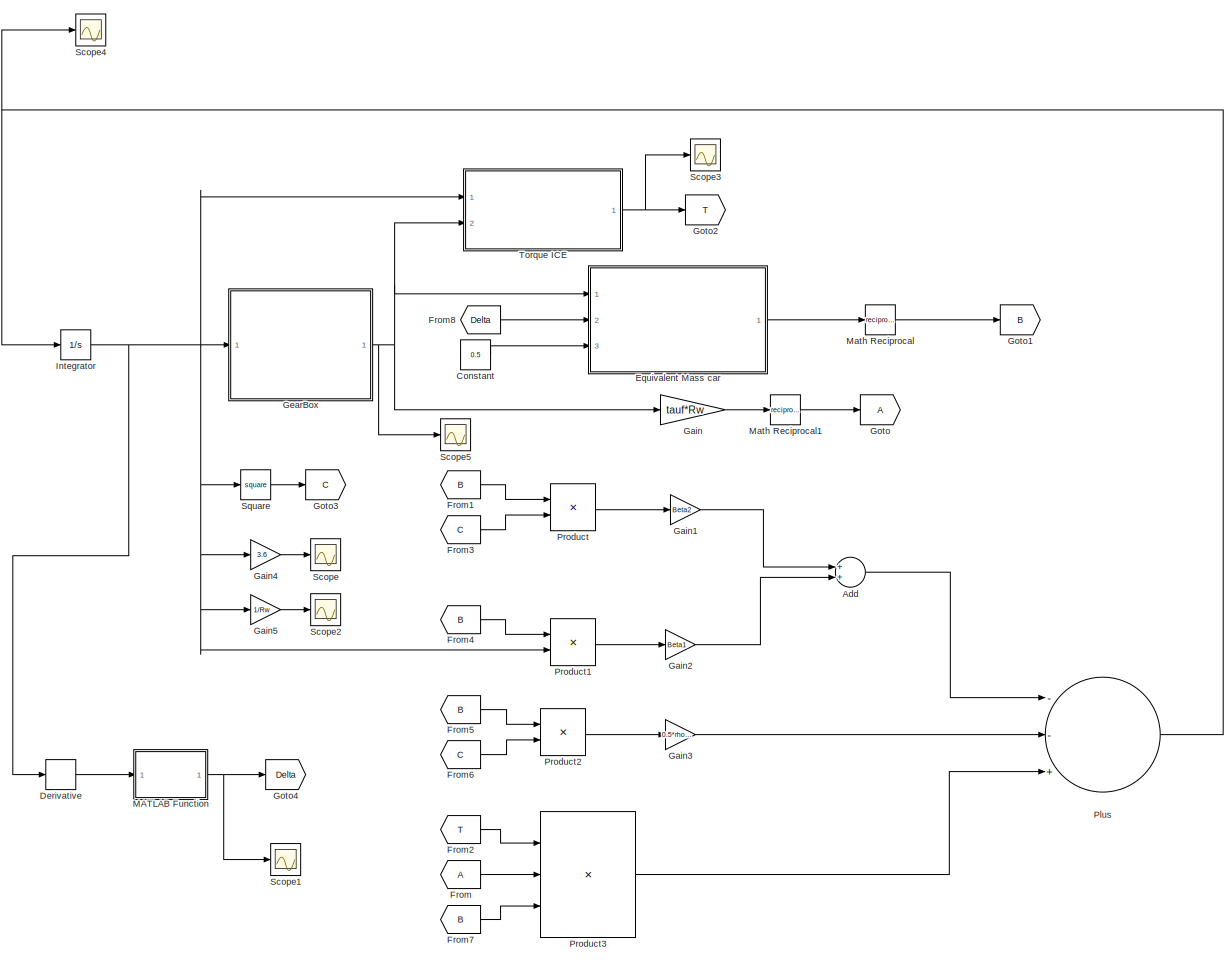
[diagram: root canvas - part 1/1, most of the canvas]
MODEL slx_4124f3d9a6a4
KIND model
CONFIG AbsTol = auto
CONFIG EnableMultiTasking = off
CONFIG FixedStep = auto
CONFIG MaxStep = auto
CONFIG MinStep = auto
CONFIG RelTol = 1e-3
CONFIG SampleTimeConstraint = Unconstrained
CONFIG Solver = VariableStepAuto
CONFIG SolverName = VariableStepAuto
CONFIG StartTime = 0.0
CONFIG StopTime = 10.0
BLOCK [Sum] Add
  InputSameDT = off
  OutDataTypeStr = Inherit: Inherit via internal rule
  Ports = [2, 1]
  SaturateOnIntegerOverflow = off
BLOCK [Constant] Constant
  Value = 0.5
BLOCK [Derivative] Derivative
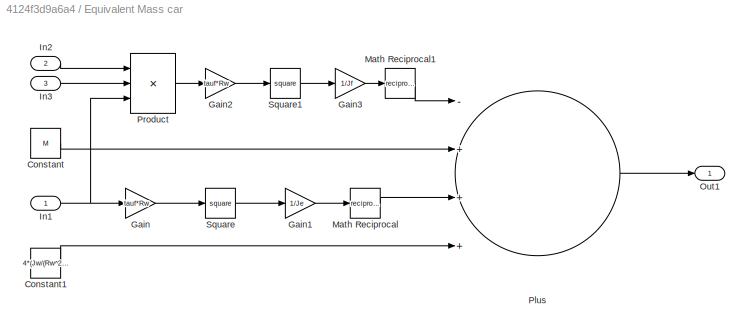
BLOCK [SubSystem] Equivalent Mass car
  Ports = [3, 1]
  RequestExecContextInheritance = off
BLOCK [Constant] Equivalent Mass car/Constant
  Value = M
BLOCK [Constant] Equivalent Mass car/Constant1
  Value = 4*(Jw/(Rw^2))
BLOCK [Gain] Equivalent Mass car/Gain
  Gain = tauf*Rw
  OutDataTypeStr = Inherit: Inherit via internal rule
  ParamDataTypeStr = Inherit: Inherit via internal rule
  SaturateOnIntegerOverflow = off
BLOCK [Gain] Equivalent Mass car/Gain1
  Gain = 1/Je
  OutDataTypeStr = Inherit: Inherit via internal rule
  ParamDataTypeStr = Inherit: Inherit via internal rule
  SaturateOnIntegerOverflow = off
BLOCK [Gain] Equivalent Mass car/Gain2
  Gain = tauf*Rw
  OutDataTypeStr = Inherit: Inherit via internal rule
  ParamDataTypeStr = Inherit: Inherit via internal rule
  SaturateOnIntegerOverflow = off
BLOCK [Gain] Equivalent Mass car/Gain3
  Gain = 1/Jf
  OutDataTypeStr = Inherit: Inherit via internal rule
  ParamDataTypeStr = Inherit: Inherit via internal rule
  SaturateOnIntegerOverflow = off
BLOCK [Inport] Equivalent Mass car/In1
  IconDisplay = Port number
BLOCK [Inport] Equivalent Mass car/In2
  IconDisplay = Port number
  Port = 2
BLOCK [Inport] Equivalent Mass car/In3
  IconDisplay = Port number
  Port = 3
BLOCK [Math] Equivalent Mass car/Math Reciprocal
  Operator = reciprocal
  Ports = [1, 1]
BLOCK [Math] Equivalent Mass car/Math Reciprocal1
  Operator = reciprocal
  Ports = [1, 1]
BLOCK [Outport] Equivalent Mass car/Out1
  IconDisplay = Port number
BLOCK [Sum] Equivalent Mass car/Plus
  InputSameDT = off
  Inputs = -+++
  OutDataTypeStr = Inherit: Inherit via internal rule
  Ports = [4, 1]
  SaturateOnIntegerOverflow = off
BLOCK [Product] Equivalent Mass car/Product
  InputSameDT = off
  Inputs = 3
  OutDataTypeStr = Inherit: Inherit via internal rule
  Ports = [3, 1]
  RndMeth = Floor
  SaturateOnIntegerOverflow = off
BLOCK [Math] Equivalent Mass car/Square
  Operator = square
  Ports = [1, 1]
BLOCK [Math] Equivalent Mass car/Square1
  Operator = square
  Ports = [1, 1]
BLOCK [From] From
BLOCK [From] From1
  GotoTag = B
BLOCK [From] From2
  GotoTag = T
BLOCK [From] From3
  GotoTag = C
BLOCK [From] From4
  GotoTag = B
BLOCK [From] From5
  GotoTag = B
BLOCK [From] From6
  GotoTag = C
BLOCK [From] From7
  GotoTag = B
BLOCK [From] From8
  GotoTag = Delta
BLOCK [Gain] Gain
  Gain = tauf*Rw
  OutDataTypeStr = Inherit: Inherit via internal rule
  ParamDataTypeStr = Inherit: Inherit via internal rule
  SaturateOnIntegerOverflow = off
BLOCK [Gain] Gain1
  Gain = Beta2
  OutDataTypeStr = Inherit: Inherit via internal rule
  ParamDataTypeStr = Inherit: Inherit via internal rule
  SaturateOnIntegerOverflow = off
BLOCK [Gain] Gain2
  Gain = Beta1
  OutDataTypeStr = Inherit: Inherit via internal rule
  ParamDataTypeStr = Inherit: Inherit via internal rule
  SaturateOnIntegerOverflow = off
BLOCK [Gain] Gain3
  Gain = 0.5*rho*Sf*Cx
  OutDataTypeStr = Inherit: Inherit via internal rule
  ParamDataTypeStr = Inherit: Inherit via internal rule
  SaturateOnIntegerOverflow = off
BLOCK [Gain] Gain4
  Gain = 3.6
  OutDataTypeStr = Inherit: Inherit via internal rule
  ParamDataTypeStr = Inherit: Inherit via internal rule
  SaturateOnIntegerOverflow = off
BLOCK [Gain] Gain5
  Gain = 1/Rw
  OutDataTypeStr = Inherit: Inherit via internal rule
  ParamDataTypeStr = Inherit: Inherit via internal rule
  SaturateOnIntegerOverflow = off
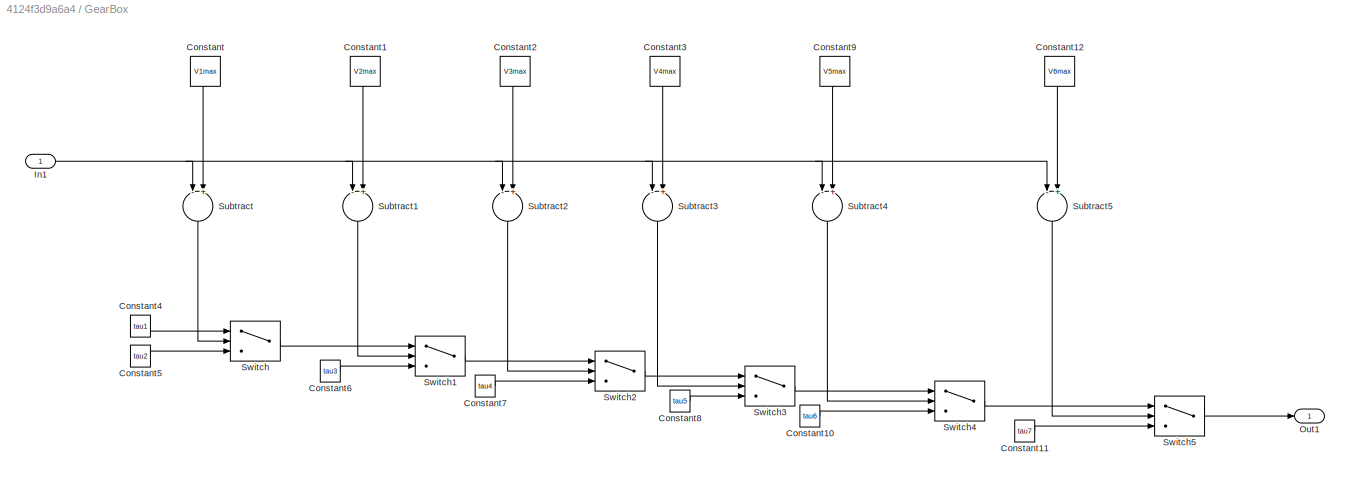
BLOCK [SubSystem] GearBox
  Ports = [1, 1]
  RequestExecContextInheritance = off
BLOCK [Constant] GearBox/Constant
  Value = V1max
BLOCK [Constant] GearBox/Constant1
  Value = V2max
BLOCK [Constant] GearBox/Constant10
  Value = tau6
BLOCK [Constant] GearBox/Constant11
  Value = tau7
BLOCK [Constant] GearBox/Constant12
  Value = V6max
BLOCK [Constant] GearBox/Constant2
  Value = V3max
BLOCK [Constant] GearBox/Constant3
  Value = V4max
BLOCK [Constant] GearBox/Constant4
  Value = tau1
BLOCK [Constant] GearBox/Constant5
  Value = tau2
BLOCK [Constant] GearBox/Constant6
  Value = tau3
BLOCK [Constant] GearBox/Constant7
  Value = tau4
BLOCK [Constant] GearBox/Constant8
  Value = tau5
BLOCK [Constant] GearBox/Constant9
  Value = V5max
BLOCK [Inport] GearBox/In1
  IconDisplay = Port number
BLOCK [Outport] GearBox/Out1
  IconDisplay = Port number
BLOCK [Sum] GearBox/Subtract
  InputSameDT = off
  Inputs = -+
  OutDataTypeStr = Inherit: Inherit via internal rule
  Ports = [2, 1]
  SaturateOnIntegerOverflow = off
BLOCK [Sum] GearBox/Subtract1
  InputSameDT = off
  Inputs = -+
  OutDataTypeStr = Inherit: Inherit via internal rule
  Ports = [2, 1]
  SaturateOnIntegerOverflow = off
BLOCK [Sum] GearBox/Subtract2
  InputSameDT = off
  Inputs = -+
  OutDataTypeStr = Inherit: Inherit via internal rule
  Ports = [2, 1]
  SaturateOnIntegerOverflow = off
BLOCK [Sum] GearBox/Subtract3
  InputSameDT = off
  Inputs = -+
  OutDataTypeStr = Inherit: Inherit via internal rule
  Ports = [2, 1]
  SaturateOnIntegerOverflow = off
BLOCK [Sum] GearBox/Subtract4
  InputSameDT = off
  Inputs = -+
  OutDataTypeStr = Inherit: Inherit via internal rule
  Ports = [2, 1]
  SaturateOnIntegerOverflow = off
BLOCK [Sum] GearBox/Subtract5
  InputSameDT = off
  Inputs = -+
  OutDataTypeStr = Inherit: Inherit via internal rule
  Ports = [2, 1]
  SaturateOnIntegerOverflow = off
BLOCK [Switch] GearBox/Switch
  Criteria = u2 > Threshold
  InputSameDT = off
  SaturateOnIntegerOverflow = off
BLOCK [Switch] GearBox/Switch1
  Criteria = u2 > Threshold
  InputSameDT = off
  SaturateOnIntegerOverflow = off
BLOCK [Switch] GearBox/Switch2
  Criteria = u2 > Threshold
  InputSameDT = off
  SaturateOnIntegerOverflow = off
BLOCK [Switch] GearBox/Switch3
  Criteria = u2 > Threshold
  InputSameDT = off
  SaturateOnIntegerOverflow = off
BLOCK [Switch] GearBox/Switch4
  Criteria = u2 > Threshold
  InputSameDT = off
  SaturateOnIntegerOverflow = off
BLOCK [Switch] GearBox/Switch5
  Criteria = u2 > Threshold
  InputSameDT = off
  SaturateOnIntegerOverflow = off
BLOCK [Goto] Goto
BLOCK [Goto] Goto1
  GotoTag = B
BLOCK [Goto] Goto2
  GotoTag = T
BLOCK [Goto] Goto3
  GotoTag = C
BLOCK [Goto] Goto4
  GotoTag = Delta
BLOCK [Integrator] Integrator
  Ports = [1, 1]
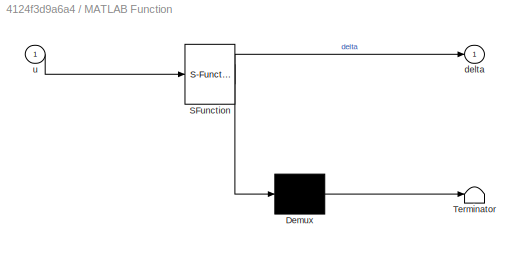
BLOCK [SubSystem] MATLAB Function
  ErrorFcn = Stateflow.Translate.translate
  PermitHierarchicalResolution = ExplicitOnly
  Ports = [1, 1]
  RequestExecContextInheritance = off
  SFBlockType = MATLAB Function
  TreatAsAtomicUnit = on
BLOCK [Demux] MATLAB Function/ Demux 
  Outputs = 1
  Ports = [1, 1]
BLOCK [S-Function] MATLAB Function/ SFunction 
  EnableBusSupport = on
  FunctionName = sf_sfun
  PortCounts = [1 2]
  Ports = [1, 2]
  SFcnIsStateOwnerBlock = off
  SFunctionDeploymentMode = off
  Tag = Stateflow S-Function KERS_System 2
BLOCK [Terminator] MATLAB Function/ Terminator 
BLOCK [Outport] MATLAB Function/delta
  IconDisplay = Port number
BLOCK [Inport] MATLAB Function/u
  IconDisplay = Port number
BLOCK [Math] Math Reciprocal
  Operator = reciprocal
  Ports = [1, 1]
BLOCK [Math] Math Reciprocal1
  Operator = reciprocal
  Ports = [1, 1]
BLOCK [Sum] Plus
  InputSameDT = off
  Inputs = --+
  OutDataTypeStr = Inherit: Inherit via internal rule
  Ports = [3, 1]
  SaturateOnIntegerOverflow = off
BLOCK [Product] Product
  InputSameDT = off
  OutDataTypeStr = Inherit: Inherit via internal rule
  Ports = [2, 1]
  RndMeth = Floor
  SaturateOnIntegerOverflow = off
BLOCK [Product] Product1
  InputSameDT = off
  OutDataTypeStr = Inherit: Inherit via internal rule
  Ports = [2, 1]
  RndMeth = Floor
  SaturateOnIntegerOverflow = off
BLOCK [Product] Product2
  InputSameDT = off
  OutDataTypeStr = Inherit: Inherit via internal rule
  Ports = [2, 1]
  RndMeth = Floor
  SaturateOnIntegerOverflow = off
BLOCK [Product] Product3
  InputSameDT = off
  Inputs = 3
  OutDataTypeStr = Inherit: Inherit via internal rule
  Ports = [3, 1]
  RndMeth = Floor
  SaturateOnIntegerOverflow = off
BLOCK [Scope] Scope
  Floating = off
  NumInputPorts = 1
  Ports = [1]
  ScopeSpecificationString = Simulink.scopes.TimeScopeBlockCfg('CurrentConfiguration', extmgr.ConfigurationSet(extmgr.Configuration('Core','General UI',true),extmgr.Configuration('Core','Source UI',true),extmgr.Configuration('Sources','WiredSimulink',true),extmgr.Configuration('Visuals','Time Domain',true,'SerializedDisplays',{struct('MinYLimReal','-39.5015','MaxYLimReal','355.51351','YLabelReal','','MinYLimMag','0.00000','Ma...<+1385ch>
BLOCK [Scope] Scope1
  Floating = off
  NumInputPorts = 1
  Ports = [1]
  ScopeSpecificationString = Simulink.scopes.TimeScopeBlockCfg('CurrentConfiguration', extmgr.ConfigurationSet(extmgr.Configuration('Core','General UI',true),extmgr.Configuration('Core','Source UI',true),extmgr.Configuration('Sources','WiredSimulink',true,'DataLoggingVariableName','ScopeData1'),extmgr.Configuration('Visuals','Time Domain',true,'SerializedDisplays',{struct('MinYLimReal','-1.25','MaxYLimReal','1.25','YLabelReal...<+1375ch>
BLOCK [Scope] Scope2
  Floating = off
  NumInputPorts = 1
  Ports = [1]
  ScopeSpecificationString = Simulink.scopes.TimeScopeBlockCfg('CurrentConfiguration', extmgr.ConfigurationSet(extmgr.Configuration('Core','General UI',true),extmgr.Configuration('Core','Source UI',true),extmgr.Configuration('Sources','WiredSimulink',true,'DataLoggingVariableName','ScopeData2'),extmgr.Configuration('Visuals','Time Domain',true,'SerializedDisplays',{struct('MinYLimReal','-2.87127','MaxYLimReal','25.84143','YLa...<+1387ch>
BLOCK [Scope] Scope3
  Floating = off
  NumInputPorts = 1
  Ports = [1]
  ScopeSpecificationString = Simulink.scopes.TimeScopeBlockCfg('CurrentConfiguration', extmgr.ConfigurationSet(extmgr.Configuration('Core','General UI',true),extmgr.Configuration('Core','Source UI',true),extmgr.Configuration('Sources','WiredSimulink',true,'DataLoggingVariableName','ScopeData3'),extmgr.Configuration('Visuals','Time Domain',true,'SerializedDisplays',{struct('MinYLimReal','14.27997','MaxYLimReal','756.28029','YL...<+1421ch>
BLOCK [Scope] Scope4
  Floating = off
  NumInputPorts = 1
  Ports = [1]
  ScopeSpecificationString = Simulink.scopes.TimeScopeBlockCfg('CurrentConfiguration', extmgr.ConfigurationSet(extmgr.Configuration('Core','General UI',true),extmgr.Configuration('Core','Source UI',true),extmgr.Configuration('Sources','WiredSimulink',true,'DataLoggingVariableName','ScopeData4'),extmgr.Configuration('Visuals','Time Domain',true,'SerializedDisplays',{struct('MinYLimReal','-5.65814','MaxYLimReal','51.21434','YLa...<+1448ch>
BLOCK [Scope] Scope5
  Floating = off
  NumInputPorts = 1
  Ports = [1]
  ScopeSpecificationString = Simulink.scopes.TimeScopeBlockCfg('CurrentConfiguration', extmgr.ConfigurationSet(extmgr.Configuration('Core','General UI',true),extmgr.Configuration('Core','Source UI',true),extmgr.Configuration('Sources','WiredSimulink',true,'DataLoggingVariableName','ScopeData5'),extmgr.Configuration('Visuals','Time Domain',true,'SerializedDisplays',{struct('MinYLimReal','0.1841','MaxYLimReal','1.58985','YLabel...<+1409ch>
BLOCK [Math] Square
  Operator = square
  Ports = [1, 1]
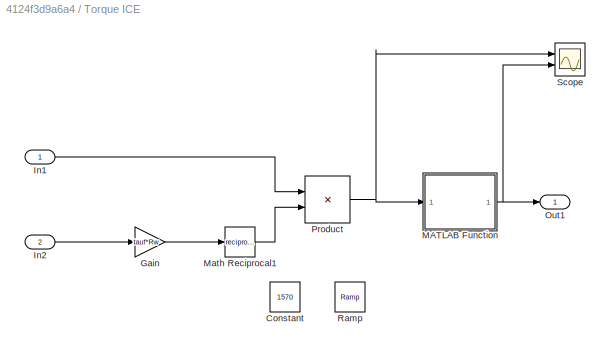
BLOCK [SubSystem] Torque ICE
  Ports = [2, 1]
  RequestExecContextInheritance = off
BLOCK [Constant] Torque ICE/Constant
  Commented = on
  Value = 1570
BLOCK [Gain] Torque ICE/Gain
  Gain = tauf*Rw
  OutDataTypeStr = Inherit: Inherit via internal rule
  ParamDataTypeStr = Inherit: Inherit via internal rule
  SaturateOnIntegerOverflow = off
BLOCK [Inport] Torque ICE/In1
  IconDisplay = Port number
BLOCK [Inport] Torque ICE/In2
  IconDisplay = Port number
  Port = 2
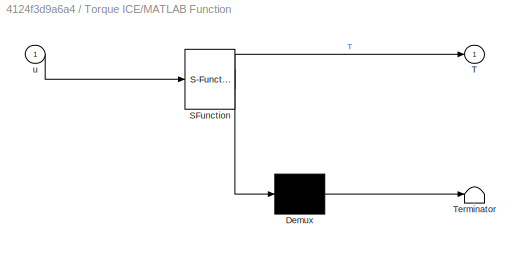
BLOCK [SubSystem] Torque ICE/MATLAB Function
  ErrorFcn = Stateflow.Translate.translate
  PermitHierarchicalResolution = ExplicitOnly
  Ports = [1, 1]
  RequestExecContextInheritance = off
  SFBlockType = MATLAB Function
  TreatAsAtomicUnit = on
BLOCK [Demux] Torque ICE/MATLAB Function/ Demux 
  Outputs = 1
  Ports = [1, 1]
BLOCK [S-Function] Torque ICE/MATLAB Function/ SFunction 
  EnableBusSupport = on
  FunctionName = sf_sfun
  PortCounts = [1 2]
  Ports = [1, 2]
  SFcnIsStateOwnerBlock = off
  SFunctionDeploymentMode = off
  Tag = Stateflow S-Function KERS_System 1
BLOCK [Terminator] Torque ICE/MATLAB Function/ Terminator 
BLOCK [Outport] Torque ICE/MATLAB Function/T
  IconDisplay = Port number
BLOCK [Inport] Torque ICE/MATLAB Function/u
  IconDisplay = Port number
BLOCK [Math] Torque ICE/Math Reciprocal1
  Operator = reciprocal
  Ports = [1, 1]
BLOCK [Outport] Torque ICE/Out1
  IconDisplay = Port number
BLOCK [Product] Torque ICE/Product
  InputSameDT = off
  OutDataTypeStr = Inherit: Inherit via internal rule
  Ports = [2, 1]
  RndMeth = Floor
  SaturateOnIntegerOverflow = off
BLOCK [Reference] Torque ICE/Ramp  REF=simulink/Sources/Ramp
  Commented = on
  Ports = [0, 1]
  SourceBlock = simulink/Sources/Ramp
  SourceProductBaseCode = SL
  SourceProductName = Simulink
  SourceType = Ramp
BLOCK [Scope] Torque ICE/Scope
  Floating = off
  NumInputPorts = 2
  Ports = [2]
  ScopeSpecificationString = Simulink.scopes.TimeScopeBlockCfg('CurrentConfiguration', extmgr.ConfigurationSet(extmgr.Configuration('Core','General UI',true),extmgr.Configuration('Core','Source UI',true),extmgr.Configuration('Sources','WiredSimulink',true,'DataLoggingVariableName','ScopeData6'),extmgr.Configuration('Visuals','Time Domain',true,'SerializedDisplays',{struct('MinYLimReal','-1.00000','MaxYLimReal','1.00000','YLab...<+2058ch>
LINE Add:1 -> Plus:1
LINE Constant:1 -> Equivalent Mass car:3
LINE Derivative:1 -> MATLAB Function:1
LINE Equivalent Mass car/Constant1:1 -> Equivalent Mass car/Plus:4
LINE Equivalent Mass car/Constant:1 -> Equivalent Mass car/Plus:2
LINE Equivalent Mass car/Gain1:1 -> Equivalent Mass car/Math Reciprocal:1
LINE Equivalent Mass car/Gain2:1 -> Equivalent Mass car/Square1:1
LINE Equivalent Mass car/Gain3:1 -> Equivalent Mass car/Math Reciprocal1:1
LINE Equivalent Mass car/Gain:1 -> Equivalent Mass car/Square:1
NET Equivalent Mass car/In1:1 -> Equivalent Mass car/Gain:1, Equivalent Mass car/Product:3
LINE Equivalent Mass car/In2:1 -> Equivalent Mass car/Product:1
LINE Equivalent Mass car/In3:1 -> Equivalent Mass car/Product:2
LINE Equivalent Mass car/Math Reciprocal1:1 -> Equivalent Mass car/Plus:1
LINE Equivalent Mass car/Math Reciprocal:1 -> Equivalent Mass car/Plus:3
LINE Equivalent Mass car/Plus:1 -> Equivalent Mass car/Out1:1
LINE Equivalent Mass car/Product:1 -> Equivalent Mass car/Gain2:1
LINE Equivalent Mass car/Square1:1 -> Equivalent Mass car/Gain3:1
LINE Equivalent Mass car/Square:1 -> Equivalent Mass car/Gain1:1
LINE Equivalent Mass car:1 -> Math Reciprocal:1
LINE From1:1 -> Product:1
LINE From2:1 -> Product3:1
LINE From3:1 -> Product:2
LINE From4:1 -> Product1:1
LINE From5:1 -> Product2:1
LINE From6:1 -> Product2:2
LINE From7:1 -> Product3:3
LINE From8:1 -> Equivalent Mass car:2
LINE From:1 -> Product3:2
LINE Gain1:1 -> Add:1
LINE Gain2:1 -> Add:2
LINE Gain3:1 -> Plus:2
LINE Gain4:1 -> Scope:1
LINE Gain5:1 -> Scope2:1
LINE Gain:1 -> Math Reciprocal1:1
LINE GearBox/Constant10:1 -> GearBox/Switch4:3
LINE GearBox/Constant11:1 -> GearBox/Switch5:3
LINE GearBox/Constant12:1 -> GearBox/Subtract5:2
LINE GearBox/Constant1:1 -> GearBox/Subtract1:2
LINE GearBox/Constant2:1 -> GearBox/Subtract2:2
LINE GearBox/Constant3:1 -> GearBox/Subtract3:2
LINE GearBox/Constant4:1 -> GearBox/Switch:1
LINE GearBox/Constant5:1 -> GearBox/Switch:3
LINE GearBox/Constant6:1 -> GearBox/Switch1:3
LINE GearBox/Constant7:1 -> GearBox/Switch2:3
LINE GearBox/Constant8:1 -> GearBox/Switch3:3
LINE GearBox/Constant9:1 -> GearBox/Subtract4:2
LINE GearBox/Constant:1 -> GearBox/Subtract:2
NET GearBox/In1:1 -> GearBox/Subtract1:1, GearBox/Subtract2:1, GearBox/Subtract3:1, GearBox/Subtract4:1, GearBox/Subtract5:1, GearBox/Subtract:1
LINE GearBox/Subtract1:1 -> GearBox/Switch1:2
LINE GearBox/Subtract2:1 -> GearBox/Switch2:2
LINE GearBox/Subtract3:1 -> GearBox/Switch3:2
LINE GearBox/Subtract4:1 -> GearBox/Switch4:2
LINE GearBox/Subtract5:1 -> GearBox/Switch5:2
LINE GearBox/Subtract:1 -> GearBox/Switch:2
LINE GearBox/Switch1:1 -> GearBox/Switch2:1
LINE GearBox/Switch2:1 -> GearBox/Switch3:1
LINE GearBox/Switch3:1 -> GearBox/Switch4:1
LINE GearBox/Switch4:1 -> GearBox/Switch5:1
LINE GearBox/Switch5:1 -> GearBox/Out1:1
LINE GearBox/Switch:1 -> GearBox/Switch1:1
NET GearBox:1 -> Equivalent Mass car:1, Gain:1, Scope5:1, Torque ICE:2
NET Integrator:1 -> Derivative:1, Gain4:1, Gain5:1, GearBox:1, Product1:2, Square:1, Torque ICE:1
NET MATLAB Function:1 -> Goto4:1, Scope1:1
LINE Math Reciprocal1:1 -> Goto:1
LINE Math Reciprocal:1 -> Goto1:1
NET Plus:1 -> Integrator:1, Scope4:1
LINE Product1:1 -> Gain2:1
LINE Product2:1 -> Gain3:1
LINE Product3:1 -> Plus:3
LINE Product:1 -> Gain1:1
LINE Square:1 -> Goto3:1
LINE Torque ICE/Gain:1 -> Torque ICE/Math Reciprocal1:1
LINE Torque ICE/In1:1 -> Torque ICE/Product:1
LINE Torque ICE/In2:1 -> Torque ICE/Gain:1
NET Torque ICE/MATLAB Function:1 -> Torque ICE/Out1:1, Torque ICE/Scope:2
LINE Torque ICE/Math Reciprocal1:1 -> Torque ICE/Product:2
NET Torque ICE/Product:1 -> Torque ICE/MATLAB Function:1, Torque ICE/Scope:1
NET Torque ICE:1 -> Goto2:1, Scope3:1
note: NET lines group one-source signal fan-out (src -> all destinations, sorted); 1:1 wires keep LINE
CHART Torque ICE/MATLAB Function states=1 transitions=1
  STATE_LABEL 'eML_blk_kernel()'
  STATE_LABEL 'SCRIPT:\nfunction T = TorqueICE(u)\n\na0 = 88.48;\na1 = 1.41;\na2 = -8.36e-4;\n\nT = a0+a1*u+a2*(u^2);\n\n'
CHART MATLAB Function states=1 transitions=1
  STATE_LABEL 'eML_blk_kernel()'
  STATE_LABEL 'SCRIPT:\nfunction delta = DeltaGen(u)\n\nif u>=0\n    delta=1;\nelse\n    delta=-1;\nend\n'
